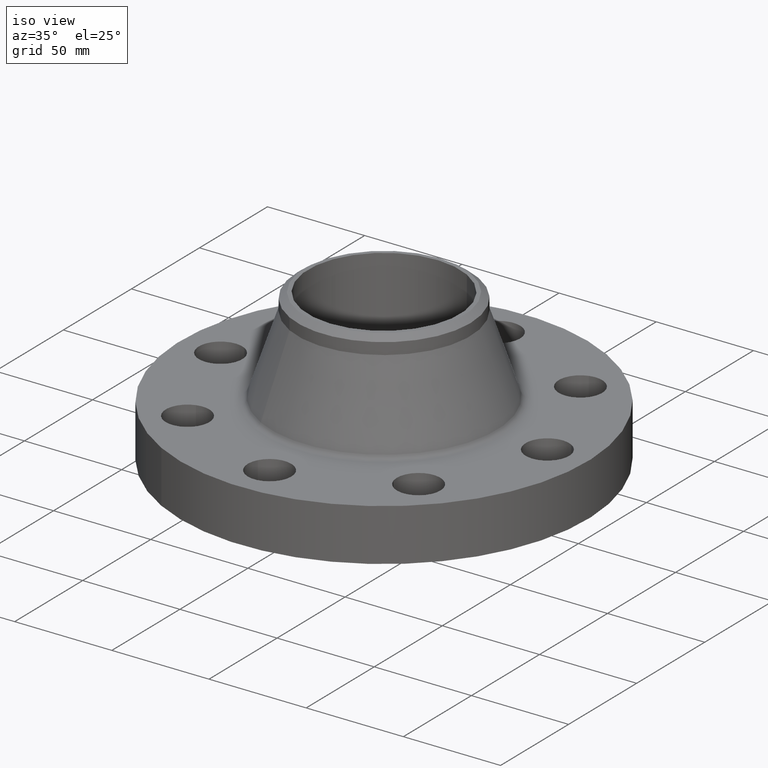
[diagram: clean part render]
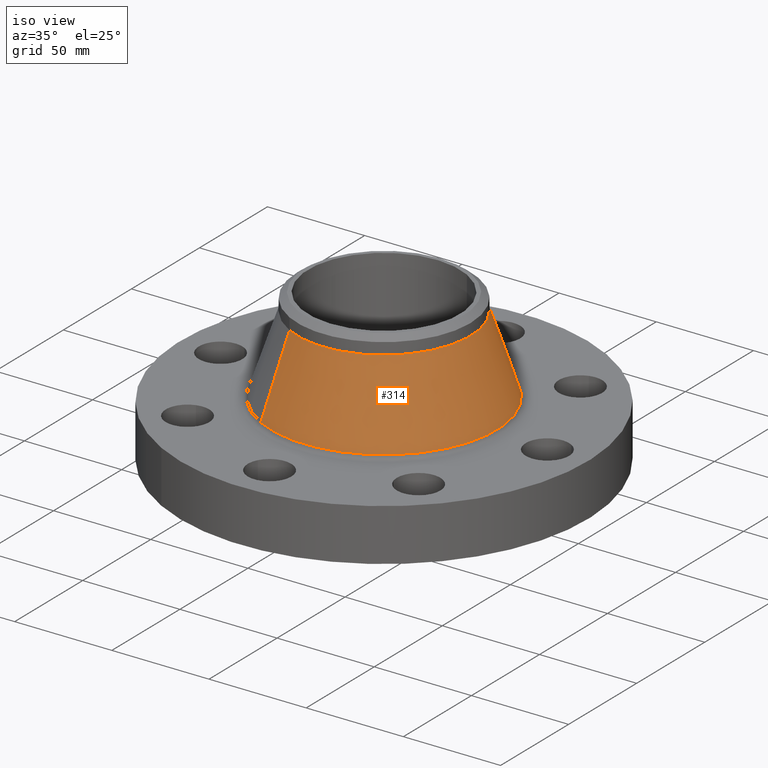
[diagram: same view with one face highlighted and labeled with its STEP entity id]
A machine part, iso view. The second image highlights one B-rep face of the part: STEP entity #314.
In plain terms, the highlighted conical surface has half-angle 18.658 deg.
Its self-contained STEP definition (entity closure, byte-faithful):
#250=AXIS2_PLACEMENT_3D('Circle Axis2P3D',#248,#249,$) ;
#287=AXIS2_PLACEMENT_3D('Cone Axis2P3D',#284,#285,#286) ;
#298=AXIS2_PLACEMENT_3D('Circle Axis2P3D',#296,#297,$) ;
#245=CARTESIAN_POINT('Vertex',(1.09426162229,2.00303246395,1.14160988584)) ;
#248=CARTESIAN_POINT('Axis2P3D Location',(0.,0.,1.14160988584)) ;
#252=CARTESIAN_POINT('Vertex',(-1.09426162229,-2.00303246395,1.14160988584)) ;
#284=CARTESIAN_POINT('Axis2P3D Location',(0.,0.,2.71845634604)) ;
#289=CARTESIAN_POINT('Line Origine',(0.966628157427,1.76940097363,1.93003311594)) ;
#293=CARTESIAN_POINT('Vertex',(0.838994692561,1.53576948331,2.71845634604)) ;
#296=CARTESIAN_POINT('Axis2P3D Location',(0.,0.,2.71845634604)) ;
#300=CARTESIAN_POINT('Vertex',(-0.838994692561,-1.53576948331,2.71845634604)) ;
#303=CARTESIAN_POINT('Line Origine',(-0.966628157427,-1.76940097363,1.93003311594)) ;
#249=DIRECTION('Axis2P3D Direction',(0.,0.,-0.0393700787402)) ;
#285=DIRECTION('Axis2P3D Direction',(0.,0.,-0.0393700787402)) ;
#286=DIRECTION('Axis2P3D XDirection',(-0.0188750212049,-0.0345504945626,0.)) ;
#290=DIRECTION('Vector Direction',(0.00603845182398,0.0110533119219,-0.0373009985809)) ;
#297=DIRECTION('Axis2P3D Direction',(0.,0.,-0.0393700787402)) ;
#304=DIRECTION('Vector Direction',(-0.00603845182398,-0.0110533119219,-0.0373009985809)) ;
#291=VECTOR('Line Direction',#290,0.0393700787402) ;
#305=VECTOR('Line Direction',#304,0.0393700787402) ;
#309=ORIENTED_EDGE('',*,*,#254,.F.) ;
#310=ORIENTED_EDGE('',*,*,#295,.T.) ;
#311=ORIENTED_EDGE('',*,*,#302,.T.) ;
#312=ORIENTED_EDGE('',*,*,#307,.F.) ;
#314=ADVANCED_FACE('PartBody',(#313),#288,.T.) ;
#251=CIRCLE('generated circle',#250,2.2824433289) ;
#299=CIRCLE('generated circle',#298,1.75000000001) ;
#288=CONICAL_SURFACE('Cone',#287,1.75000000001,0.325642534325) ;
#254=EDGE_CURVE('',#246,#253,#251,.T.) ;
#295=EDGE_CURVE('',#246,#294,#292,.F.) ;
#302=EDGE_CURVE('',#294,#301,#299,.T.) ;
#307=EDGE_CURVE('',#253,#301,#306,.F.) ;
#308=EDGE_LOOP('',(#309,#310,#311,#312)) ;
#313=FACE_OUTER_BOUND('',#308,.T.) ;
#292=LINE('Line',#289,#291) ;
#306=LINE('Line',#303,#305) ;
#246=VERTEX_POINT('',#245) ;
#253=VERTEX_POINT('',#252) ;
#294=VERTEX_POINT('',#293) ;
#301=VERTEX_POINT('',#300) ;